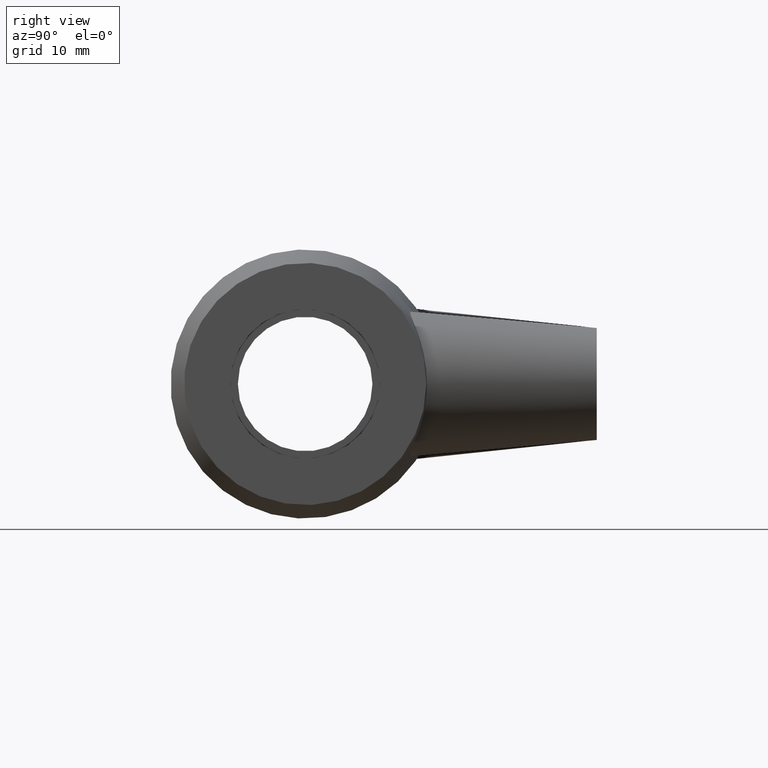
[diagram: clean part render]
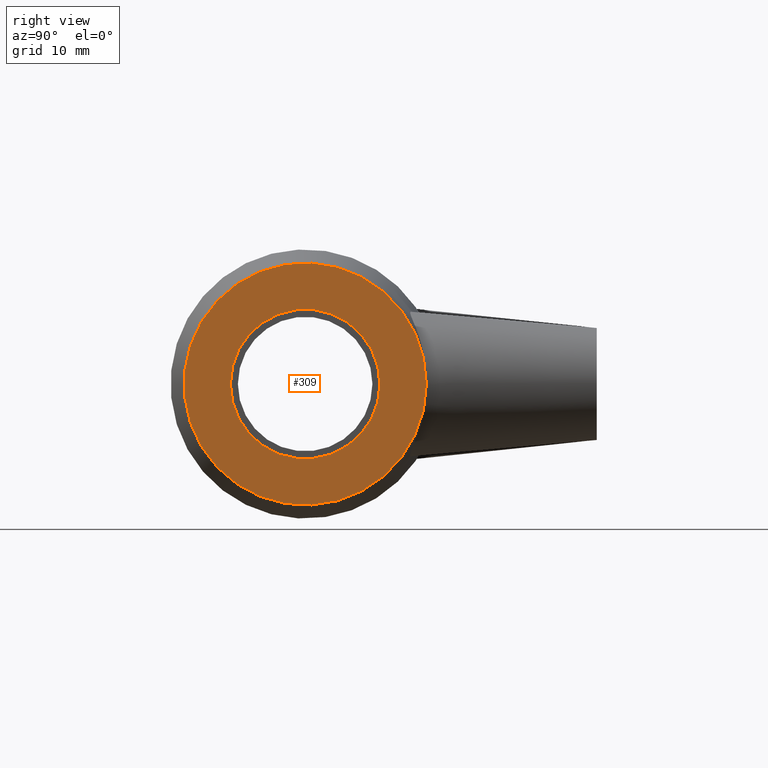
[diagram: same view with one face highlighted and labeled with its STEP entity id]
A machine part, right view. The second image highlights one B-rep face of the part: STEP entity #309.
In plain terms, the highlighted planar face has unit normal (1, 0, 0).
Its self-contained STEP definition (entity closure, byte-faithful):
#36=FACE_BOUND('',#117,.T.);
#75=FACE_OUTER_BOUND('',#116,.T.);
#116=EDGE_LOOP('',(#254));
#117=EDGE_LOOP('',(#255));
#157=CIRCLE('',#351,16.2);
#158=CIRCLE('',#353,9.99999999999999);
#185=VERTEX_POINT('',#606);
#186=VERTEX_POINT('',#609);
#213=EDGE_CURVE('',#185,#185,#157,.T.);
#214=EDGE_CURVE('',#186,#186,#158,.T.);
#254=ORIENTED_EDGE('',*,*,#213,.T.);
#255=ORIENTED_EDGE('',*,*,#214,.F.);
#289=PLANE('',#352);
#309=ADVANCED_FACE('',(#75,#36),#289,.T.);
#351=AXIS2_PLACEMENT_3D('',#607,#433,#434);
#352=AXIS2_PLACEMENT_3D('',#608,#435,#436);
#353=AXIS2_PLACEMENT_3D('',#610,#437,#438);
#433=DIRECTION('center_axis',(1.,1.83697019872103E-16,0.));
#434=DIRECTION('ref_axis',(0.,0.,-1.));
#435=DIRECTION('center_axis',(1.,1.83697019872103E-16,0.));
#436=DIRECTION('ref_axis',(0.,0.,-1.));
#437=DIRECTION('center_axis',(1.,1.83697019872103E-16,0.));
#438=DIRECTION('ref_axis',(0.,0.,-1.));
#606=CARTESIAN_POINT('',(35.5,16.2,0.));
#607=CARTESIAN_POINT('Origin',(35.5,1.30424884109193E-14,0.));
#608=CARTESIAN_POINT('Origin',(35.5,10.,0.));
#609=CARTESIAN_POINT('',(35.5,10.,0.));
#610=CARTESIAN_POINT('Origin',(35.5,1.30424884109193E-14,0.));